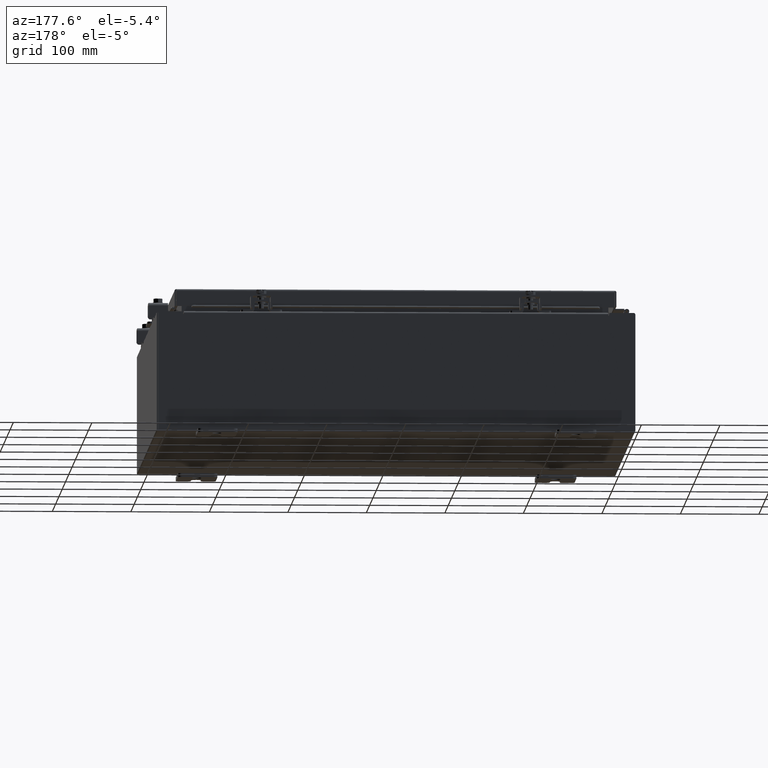
[diagram: clean part render]
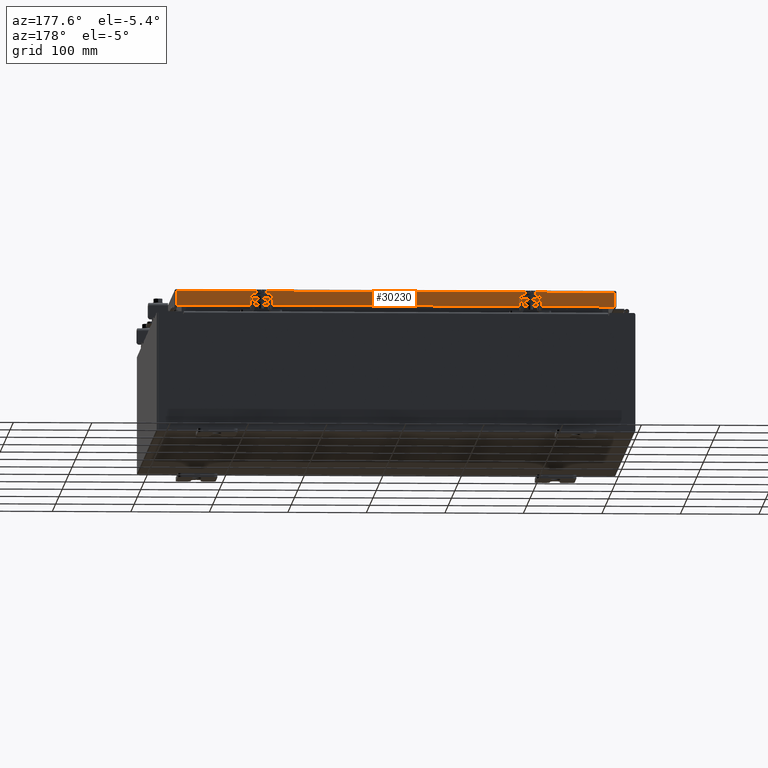
[diagram: same view with one face highlighted and labeled with its STEP entity id]
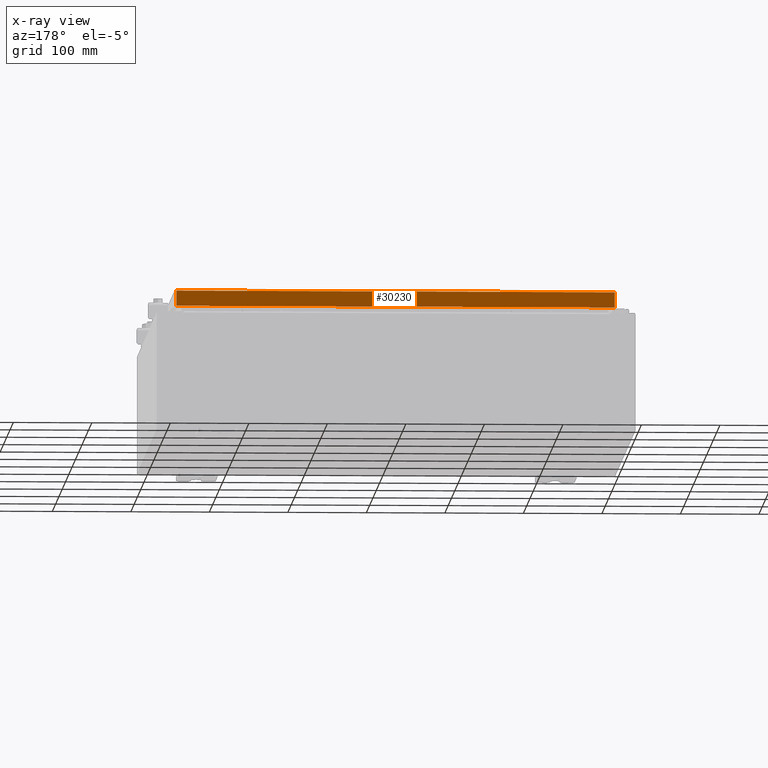
[diagram: x-ray of the same camera — body ghosted, the highlighted face saturated]
A machine part, auxiliary view. The second image highlights one B-rep face of the part: STEP entity #30230.
The next image is the same camera in x-ray: the body ghosted, the highlighted face saturated — about 0% of this face is hidden behind the body in this view.
In plain terms, the highlighted planar face has unit normal (0, -1, -0).
Its self-contained STEP definition (entity closure, byte-faithful):
#290 = VERTEX_POINT ( 'NONE', #26479 ) ;
#1099 = EDGE_CURVE ( 'NONE', #21092, #8893, #2748, .T. ) ;
#1953 = DIRECTION ( 'NONE',  ( 0.0000000000000000000, 2.818880942772350300E-015, -1.000000000000000000 ) ) ;
#2381 = VECTOR ( 'NONE', #11859, 39.37007874015748100 ) ;
#2719 = DIRECTION ( 'NONE',  ( 1.000000000000000000, -0.0000000000000000000, -0.0000000000000000000 ) ) ;
#2748 = LINE ( 'NONE', #23837, #21914 ) ;
#3105 = DIRECTION ( 'NONE',  ( 1.000000000000000000, -4.379057701015054300E-047, 1.233005954894504400E-016 ) ) ;
#3168 = CARTESIAN_POINT ( 'NONE',  ( 10.23915786437625100, 11.09399999999999200, -0.8500000000000044200 ) ) ;
#3757 = AXIS2_PLACEMENT_3D ( 'NONE', #21856, #16957, #1953 ) ;
#4823 = CARTESIAN_POINT ( 'NONE',  ( -10.98915786437626900, 11.09399999999999800, -0.08770000000000007000 ) ) ;
#5568 = VERTEX_POINT ( 'NONE', #17475 ) ;
#7467 = EDGE_CURVE ( 'NONE', #27838, #5568, #9044, .T. ) ;
#7588 = DIRECTION ( 'NONE',  ( 1.000000000000000000, -4.379057701015054300E-047, 1.233005954894504400E-016 ) ) ;
#8457 = VECTOR ( 'NONE', #3105, 39.37007874015748100 ) ;
#8514 = CARTESIAN_POINT ( 'NONE',  ( -10.23915786437626700, 11.09399999999999200, -0.8500000000000044200 ) ) ;
#8893 = VERTEX_POINT ( 'NONE', #3168 ) ;
#9044 = LINE ( 'NONE', #21805, #2381 ) ;
#9805 = DIRECTION ( 'NONE',  ( -1.000000000000000000, -3.475696988576942200E-031, -9.473942235605600700E-046 ) ) ;
#9945 = ORIENTED_EDGE ( 'NONE', *, *, #1099, .F. ) ;
#10937 = EDGE_CURVE ( 'NONE', #5568, #21092, #19471, .T. ) ;
#11336 = EDGE_CURVE ( 'NONE', #8893, #290, #28438, .T. ) ;
#11859 = DIRECTION ( 'NONE',  ( -0.0000000000000000000, 2.818880942772350300E-015, -1.000000000000000000 ) ) ;
#12202 = CARTESIAN_POINT ( 'NONE',  ( -11.07800000000000300, 11.09399999999999900, -0.8500000000000024200 ) ) ;
#12279 = ORIENTED_EDGE ( 'NONE', *, *, #23674, .T. ) ;
#13490 = VECTOR ( 'NONE', #21290, 39.37007874015748100 ) ;
#14268 = LINE ( 'NONE', #18806, #13490 ) ;
#14760 = ORIENTED_EDGE ( 'NONE', *, *, #25302, .F. ) ;
#16149 = VECTOR ( 'NONE', #9805, 39.37007874015748100 ) ;
#16957 = DIRECTION ( 'NONE',  ( 3.475696988576941300E-031, -1.000000000000000000, -2.818880942772350300E-015 ) ) ;
#17475 = CARTESIAN_POINT ( 'NONE',  ( -10.98915786437626900, 11.09399999999999900, -0.8500000000000024200 ) ) ;
#17536 = EDGE_LOOP ( 'NONE', ( #14760, #12279, #22046, #9945, #21286, #20871 ) ) ;
#18806 = CARTESIAN_POINT ( 'NONE',  ( 10.98915786437626500, 11.09399999999999800, 3.153347883512803100E-014 ) ) ;
#19471 = LINE ( 'NONE', #27609, #32017 ) ;
#20871 = ORIENTED_EDGE ( 'NONE', *, *, #7467, .F. ) ;
#20994 = CARTESIAN_POINT ( 'NONE',  ( 10.98915786437626500, 11.09399999999999800, -0.08770000000000007000 ) ) ;
#21092 = VERTEX_POINT ( 'NONE', #8514 ) ;
#21286 = ORIENTED_EDGE ( 'NONE', *, *, #10937, .F. ) ;
#21290 = DIRECTION ( 'NONE',  ( 0.0000000000000000000, 2.818880942772350300E-015, -1.000000000000000000 ) ) ;
#21805 = CARTESIAN_POINT ( 'NONE',  ( -10.98915786437626900, 11.09399999999999800, -0.07469999999999978000 ) ) ;
#21856 = CARTESIAN_POINT ( 'NONE',  ( -3.855938239127258200E-030, 11.09399999999999800, 3.153347883512803100E-014 ) ) ;
#21914 = VECTOR ( 'NONE', #2719, 39.37007874015748100 ) ;
#22046 = ORIENTED_EDGE ( 'NONE', *, *, #11336, .F. ) ;
#22772 = LINE ( 'NONE', #27278, #16149 ) ;
#23674 = EDGE_CURVE ( 'NONE', #26082, #290, #14268, .T. ) ;
#23837 = CARTESIAN_POINT ( 'NONE',  ( -10.23915786437626500, 11.09399999999999200, -0.8500000000000044200 ) ) ;
#24579 = FACE_OUTER_BOUND ( 'NONE', #17536, .T. ) ;
#25302 = EDGE_CURVE ( 'NONE', #26082, #27838, #22772, .T. ) ;
#26082 = VERTEX_POINT ( 'NONE', #20994 ) ;
#26479 = CARTESIAN_POINT ( 'NONE',  ( 10.98915786437626500, 11.09399999999999900, -0.8499999999999996400 ) ) ;
#26886 = PLANE ( 'NONE',  #3757 ) ;
#27278 = CARTESIAN_POINT ( 'NONE',  ( -11.07800000000000300, 11.09399999999999800, -0.08770000000000007000 ) ) ;
#27609 = CARTESIAN_POINT ( 'NONE',  ( -11.07800000000000300, 11.09399999999999900, -0.8500000000000024200 ) ) ;
#27838 = VERTEX_POINT ( 'NONE', #4823 ) ;
#28438 = LINE ( 'NONE', #12202, #8457 ) ;
#30230 = ADVANCED_FACE ( 'NONE', ( #24579 ), #26886, .F. ) ;
#32017 = VECTOR ( 'NONE', #7588, 39.37007874015748100 ) ;